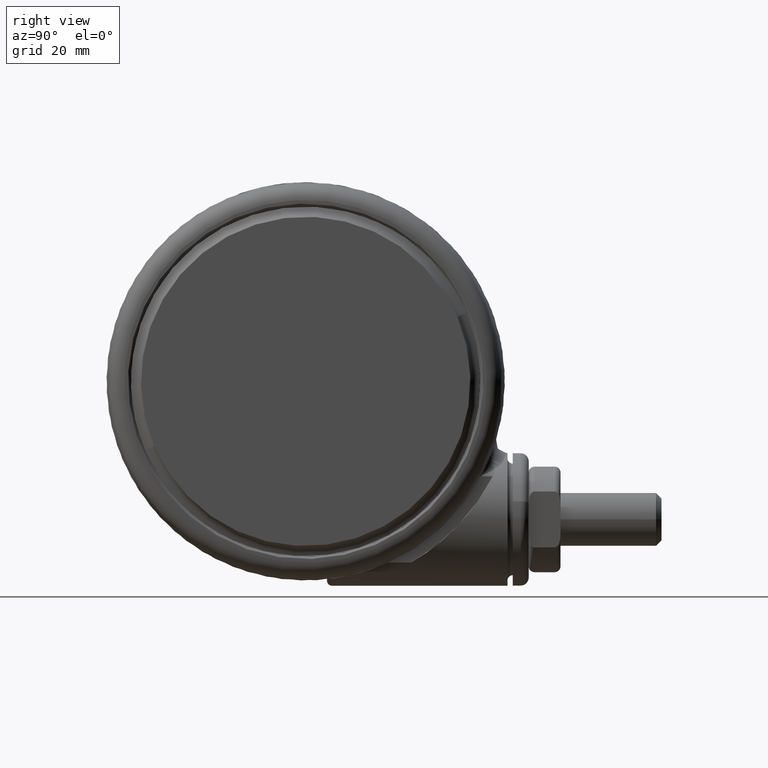
[diagram: clean part render]
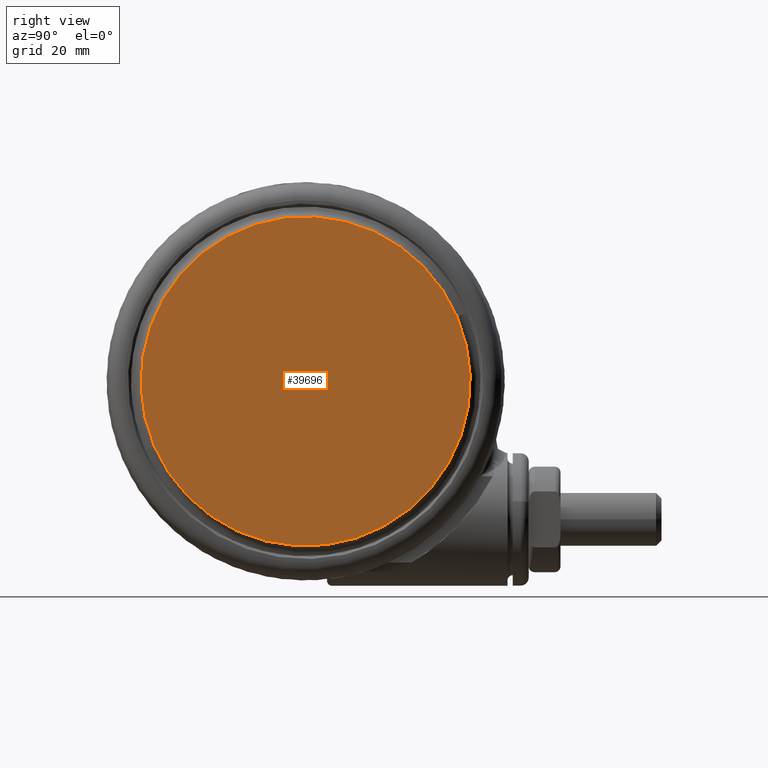
[diagram: same view with one face highlighted and labeled with its STEP entity id]
A machine part, right view. The second image highlights one B-rep face of the part: STEP entity #39696.
In plain terms, the highlighted planar face has unit normal (-1, 0, 0).
Its self-contained STEP definition (entity closure, byte-faithful):
#1104 = DIRECTION ( 'NONE',  ( -1.000000000000000000, 0.0000000000000000000, 0.0000000000000000000 ) ) ;
#2477 = ORIENTED_EDGE ( 'NONE', *, *, #49666, .T. ) ;
#6350 = AXIS2_PLACEMENT_3D ( 'NONE', #33744, #6901, #38247 ) ;
#6901 = DIRECTION ( 'NONE',  ( 0.0000000000000000000, 0.0000000000000000000, 1.000000000000000000 ) ) ;
#12397 = AXIS2_PLACEMENT_3D ( 'NONE', #25081, #56411, #29589 ) ;
#17333 = ORIENTED_EDGE ( 'NONE', *, *, #49618, .T. ) ;
#22769 = VERTEX_POINT ( 'NONE', #36421 ) ;
#25081 = CARTESIAN_POINT ( 'NONE',  ( 0.0000000000000000000, 0.0000000000000000000, -1.301042606982605300E-015 ) ) ;
#27930 = DIRECTION ( 'NONE',  ( 0.0000000000000000000, 0.0000000000000000000, -1.000000000000000000 ) ) ;
#29589 = DIRECTION ( 'NONE',  ( 1.000000000000000000, 0.0000000000000000000, 0.0000000000000000000 ) ) ;
#30532 = AXIS2_PLACEMENT_3D ( 'NONE', #41266, #27930, #1104 ) ;
#33744 = CARTESIAN_POINT ( 'NONE',  ( 0.0000000000000000000, 0.0000000000000000000, -1.301042606982605300E-015 ) ) ;
#36421 = CARTESIAN_POINT ( 'NONE',  ( -31.00000000000000000, 3.907598370292685700E-015, -1.301042606982605300E-015 ) ) ;
#38247 = DIRECTION ( 'NONE',  ( 1.000000000000000000, 0.0000000000000000000, 0.0000000000000000000 ) ) ;
#39696 = ADVANCED_FACE ( 'NONE', ( #56808 ), #54756, .F. ) ;
#41266 = CARTESIAN_POINT ( 'NONE',  ( 0.0000000000000000000, 31.00000000000000000, -1.301042606982605300E-015 ) ) ;
#41812 = CIRCLE ( 'NONE', #12397, 31.00000000000000000 ) ;
#49618 = EDGE_CURVE ( 'NONE', #22769, #50507, #56511, .T. ) ;
#49666 = EDGE_CURVE ( 'NONE', #50507, #22769, #41812, .T. ) ;
#50507 = VERTEX_POINT ( 'NONE', #54353 ) ;
#54353 = CARTESIAN_POINT ( 'NONE',  ( 31.00000000000000000, 0.0000000000000000000, -1.301042606982605300E-015 ) ) ;
#54756 = PLANE ( 'NONE',  #30532 ) ;
#56411 = DIRECTION ( 'NONE',  ( 0.0000000000000000000, 0.0000000000000000000, 1.000000000000000000 ) ) ;
#56511 = CIRCLE ( 'NONE', #6350, 31.00000000000000000 ) ;
#56789 = EDGE_LOOP ( 'NONE', ( #2477, #17333 ) ) ;
#56808 = FACE_OUTER_BOUND ( 'NONE', #56789, .T. ) ;